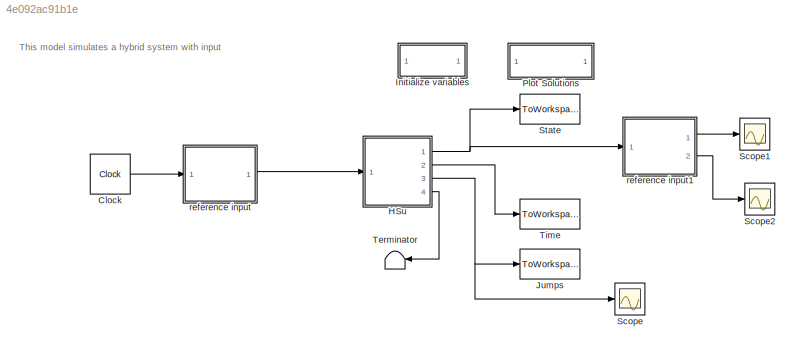
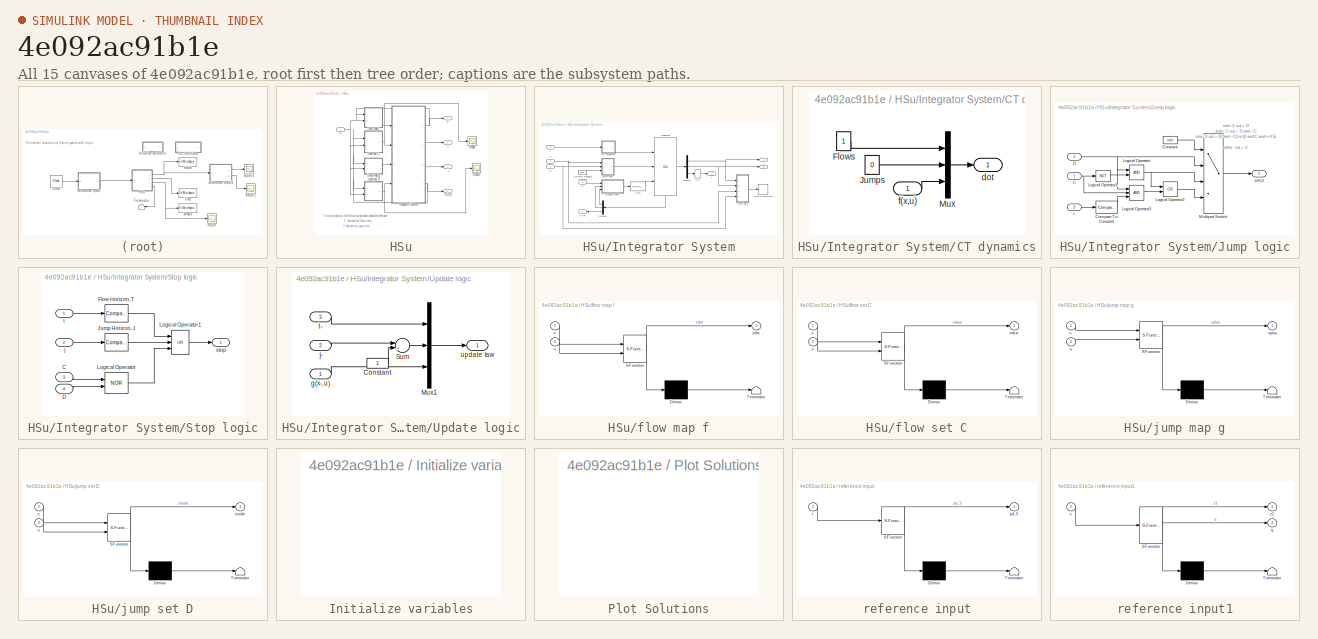
[diagram: thumbnail index - all 15 canvases of the model, root first then tree order]
MODEL slx_4e092ac91b1e
KIND model
CONFIG AbsTol = AbsTol
CONFIG FixedStep = auto
CONFIG MaxStep = MaxStep
CONFIG MinStep = auto
CONFIG RelTol = RelTol
CONFIG SampleTimeConstraint = Unconstrained
CONFIG Solver = VariableStepAuto
CONFIG SolverMode = Auto
CONFIG SolverName = VariableStepAuto
CONFIG StartTime = t_0
CONFIG StopTime = T
BLOCK [Clock] Clock
  DisplayTime = on
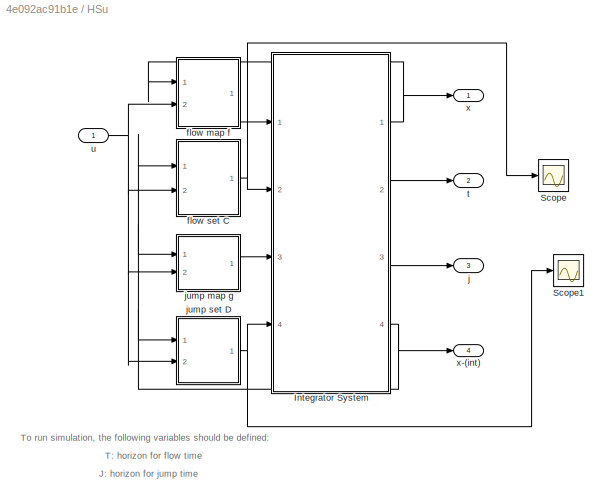
BLOCK [SubSystem] HSu
  CopyFcn = set_param(gcb,'LinkStatus','none'),                                      \nset_param(gcs, 'MaxStep', 'MaxStep', 'RelTol', 'RelTol','Stop time', 'T')
  LoadFcn = set_param(gcb,'LinkStatus','none')
  Ports = [1, 4]
  RequestExecContextInheritance = off
  Variant = off
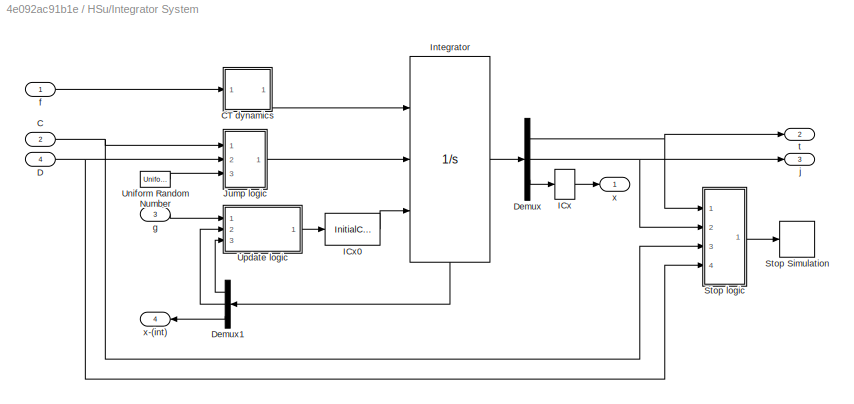
BLOCK [SubSystem] HSu/Integrator System
  Ports = [4, 4]
  Priority = 2
  RequestExecContextInheritance = off
  Variant = off
BLOCK [Inport] HSu/Integrator System/C
  IconDisplay = Port number
  Port = 2
BLOCK [SubSystem] HSu/Integrator System/CT dynamics
  Ports = [1, 1]
  RequestExecContextInheritance = off
  Variant = off
BLOCK [Constant] HSu/Integrator System/CT dynamics/Flows
BLOCK [Constant] HSu/Integrator System/CT dynamics/Jumps
  Value = 0
BLOCK [Mux] HSu/Integrator System/CT dynamics/Mux
  DisplayOption = bar
  Inputs = [1 1 -1]
  Ports = [3, 1]
BLOCK [Outport] HSu/Integrator System/CT dynamics/dot
  IconDisplay = Port number
BLOCK [Inport] HSu/Integrator System/CT dynamics/f(x,u)
  IconDisplay = Port number
BLOCK [Inport] HSu/Integrator System/D
  IconDisplay = Port number
  Port = 4
BLOCK [Demux] HSu/Integrator System/Demux
  DisplayOption = bar
  Outputs = [1 1 -1]
  Ports = [1, 3]
BLOCK [Demux] HSu/Integrator System/Demux1
  DisplayOption = bar
  Outputs = [1 1 -1]
  Ports = [1, 3]
BLOCK [InitialCondition] HSu/Integrator System/ICx
  Value = x_0
BLOCK [InitialCondition] HSu/Integrator System/ICx0
  Value = [0; 0; x_0(:)]
BLOCK [Integrator] HSu/Integrator System/Integrator
  ExternalReset = level hold
  InitialConditionSource = external
  Ports = [3, 1, 0, 0, 1]
  ShowStatePort = on
  ZeroCross = off
BLOCK [SubSystem] HSu/Integrator System/Jump logic
  Ports = [3, 1]
  RequestExecContextInheritance = off
  Variant = off
BLOCK [Inport] HSu/Integrator System/Jump logic/C
  IconDisplay = Port number
BLOCK [Reference] HSu/Integrator System/Jump logic/Compare To Constant  REF=simulink/Logic and Bit
Operations/Compare
To Constant
  Ports = [1, 1]
  SourceBlock = simulink/Logic and Bit\nOperations/Compare\nTo Constant
  SourceType = Compare To Constant
BLOCK [Constant] HSu/Integrator System/Jump logic/Constant
  Value = rule
BLOCK [Inport] HSu/Integrator System/Jump logic/D
  IconDisplay = Port number
  Port = 2
BLOCK [Logic] HSu/Integrator System/Jump logic/Logical Operator
  AllPortsSameDT = off
  OutDataTypeStr = boolean
  Ports = [2, 1]
BLOCK [Logic] HSu/Integrator System/Jump logic/Logical Operator1
  AllPortsSameDT = off
  Inputs = 1
  Operator = NOT
  OutDataTypeStr = boolean
  Ports = [1, 1]
BLOCK [Logic] HSu/Integrator System/Jump logic/Logical Operator2
  AllPortsSameDT = off
  Operator = OR
  OutDataTypeStr = boolean
  Ports = [2, 1]
BLOCK [Logic] HSu/Integrator System/Jump logic/Logical Operator3
  AllPortsSameDT = off
  Inputs = 3
  OutDataTypeStr = boolean
  Ports = [3, 1]
BLOCK [MultiPortSwitch] HSu/Integrator System/Jump logic/Multiport Switch
  InputSameDT = off
  Ports = [4, 1]
  SaturateOnIntegerOverflow = off
BLOCK [Outport] HSu/Integrator System/Jump logic/jump
  IconDisplay = Port number
BLOCK [Inport] HSu/Integrator System/Jump logic/r
  IconDisplay = Port number
  Port = 3
BLOCK [Stop] HSu/Integrator System/Stop Simulation
BLOCK [SubSystem] HSu/Integrator System/Stop logic
  Ports = [4, 1]
  RequestExecContextInheritance = off
  Variant = off
BLOCK [Inport] HSu/Integrator System/Stop logic/C
  IconDisplay = Port number
  Port = 3
BLOCK [Inport] HSu/Integrator System/Stop logic/D
  IconDisplay = Port number
  Port = 4
BLOCK [Reference] HSu/Integrator System/Stop logic/Flow Horizon, T  REF=simulink/Logic and Bit
Operations/Compare
To Constant
  Ports = [1, 1]
  SourceBlock = simulink/Logic and Bit\nOperations/Compare\nTo Constant
  SourceType = Compare To Constant
BLOCK [Reference] HSu/Integrator System/Stop logic/Jump Horizon, J  REF=simulink/Logic and Bit
Operations/Compare
To Constant
  Ports = [1, 1]
  SourceBlock = simulink/Logic and Bit\nOperations/Compare\nTo Constant
  SourceType = Compare To Constant
BLOCK [Logic] HSu/Integrator System/Stop logic/Logical Operator
  AllPortsSameDT = off
  Operator = NOR
  OutDataTypeStr = boolean
  Ports = [2, 1]
BLOCK [Logic] HSu/Integrator System/Stop logic/Logical Operator1
  AllPortsSameDT = off
  Inputs = 3
  Operator = OR
  OutDataTypeStr = boolean
  Ports = [3, 1]
BLOCK [Inport] HSu/Integrator System/Stop logic/j
  IconDisplay = Port number
  Port = 2
BLOCK [Outport] HSu/Integrator System/Stop logic/stop
  IconDisplay = Port number
BLOCK [Inport] HSu/Integrator System/Stop logic/t
  IconDisplay = Port number
BLOCK [UniformRandomNumber] HSu/Integrator System/Uniform Random Number
  Minimum = 0
  SampleTime = 0
  Seed = abs(floor(100*rand))
BLOCK [SubSystem] HSu/Integrator System/Update logic
  Ports = [3, 1]
  RequestExecContextInheritance = off
  Variant = off
BLOCK [Constant] HSu/Integrator System/Update logic/Constant
BLOCK [Mux] HSu/Integrator System/Update logic/Mux1
  DisplayOption = bar
  Inputs = [1 1 -1]
  Ports = [3, 1]
BLOCK [Sum] HSu/Integrator System/Update logic/Sum
  IconShape = round
  InputSameDT = off
  Inputs = |++
  OutDataTypeStr = Inherit: Inherit via internal rule
  Ports = [2, 1]
  SaturateOnIntegerOverflow = off
BLOCK [Inport] HSu/Integrator System/Update logic/g(x-,u)
  IconDisplay = Port number
BLOCK [Inport] HSu/Integrator System/Update logic/j-
  IconDisplay = Port number
  Port = 2
BLOCK [Inport] HSu/Integrator System/Update logic/t-
  IconDisplay = Port number
  Port = 3
BLOCK [Outport] HSu/Integrator System/Update logic/update law
  IconDisplay = Port number
BLOCK [Inport] HSu/Integrator System/f
  IconDisplay = Port number
BLOCK [Inport] HSu/Integrator System/g
  IconDisplay = Port number
  Port = 3
BLOCK [Outport] HSu/Integrator System/j
  IconDisplay = Port number
  Port = 3
BLOCK [Outport] HSu/Integrator System/t
  IconDisplay = Port number
  Port = 2
BLOCK [Outport] HSu/Integrator System/x
  IconDisplay = Port number
BLOCK [Outport] HSu/Integrator System/x-(int)
  IconDisplay = Port number
  Port = 4
BLOCK [Scope] HSu/Scope
  Ports = [1]
  ScopeSpecificationString = Simulink.scopes.TimeScopeBlockCfg('CurrentConfiguration', extmgr.ConfigurationSet(extmgr.Configuration('Core','General UI',true),extmgr.Configuration('Core','Source UI',true),extmgr.Configuration('Sources','WiredSimulink',true,'DataLoggingVariableName','ScopeData1'),extmgr.Configuration('Visuals','Time Domain',true,'SerializedDisplays',{struct('MinYLimReal','-0.01085','MaxYLimReal','0.01608','YLab...<+1446ch>
BLOCK [Scope] HSu/Scope1
  Ports = [1]
  ScopeSpecificationString = Simulink.scopes.TimeScopeBlockCfg('CurrentConfiguration', extmgr.ConfigurationSet(extmgr.Configuration('Core','General UI',true),extmgr.Configuration('Core','Source UI',true),extmgr.Configuration('Sources','WiredSimulink',true,'DataLoggingVariableName','ScopeData2'),extmgr.Configuration('Visuals','Time Domain',true,'SerializedDisplays',{struct('MinYLimReal','-0.00007','MaxYLimReal','0.00007','YLab...<+1388ch>
BLOCK [SubSystem] HSu/flow map f
  ErrorFcn = Stateflow.Translate.translate
  PermitHierarchicalResolution = ExplicitOnly
  Ports = [2, 1]
  RequestExecContextInheritance = off
  SFBlockType = MATLAB Function
  TreatAsAtomicUnit = on
  Variant = off
BLOCK [Demux] HSu/flow map f/ Demux 
  Outputs = 1
  Ports = [1, 1]
BLOCK [S-Function] HSu/flow map f/ SFunction 
  EnableBusSupport = on
  FunctionName = sf_sfun
  Parameters = para
  PortCounts = [2 2]
  Ports = [2, 2]
  SFunctionDeploymentMode = off
  Tag = Stateflow S-Function quadrotor_20190317_small 13
BLOCK [Terminator] HSu/flow map f/ Terminator 
BLOCK [Inport] HSu/flow map f/u
  IconDisplay = Port number
  Port = 2
BLOCK [Inport] HSu/flow map f/x
  IconDisplay = Port number
BLOCK [Outport] HSu/flow map f/xdot
  IconDisplay = Port number
BLOCK [SubSystem] HSu/flow set C
  ErrorFcn = Stateflow.Translate.translate
  PermitHierarchicalResolution = ExplicitOnly
  Ports = [2, 1]
  RequestExecContextInheritance = off
  SFBlockType = MATLAB Function
  TreatAsAtomicUnit = on
  Variant = off
BLOCK [Demux] HSu/flow set C/ Demux 
  Outputs = 1
  Ports = [1, 1]
BLOCK [S-Function] HSu/flow set C/ SFunction 
  EnableBusSupport = on
  FunctionName = sf_sfun
  Parameters = para
  PortCounts = [2 2]
  Ports = [2, 2]
  SFunctionDeploymentMode = off
  Tag = Stateflow S-Function quadrotor_20190317_small 14
BLOCK [Terminator] HSu/flow set C/ Terminator 
BLOCK [Inport] HSu/flow set C/u
  IconDisplay = Port number
  Port = 2
BLOCK [Outport] HSu/flow set C/value
  IconDisplay = Port number
BLOCK [Inport] HSu/flow set C/x
  IconDisplay = Port number
BLOCK [Outport] HSu/j
  IconDisplay = Port number
  Port = 3
BLOCK [SubSystem] HSu/jump map g
  ErrorFcn = Stateflow.Translate.translate
  PermitHierarchicalResolution = ExplicitOnly
  Ports = [2, 1]
  Priority = 2
  RequestExecContextInheritance = off
  SFBlockType = MATLAB Function
  TreatAsAtomicUnit = on
  Variant = off
BLOCK [Demux] HSu/jump map g/ Demux 
  Outputs = 1
  Ports = [1, 1]
BLOCK [S-Function] HSu/jump map g/ SFunction 
  EnableBusSupport = on
  FunctionName = sf_sfun
  Parameters = para
  PortCounts = [2 2]
  Ports = [2, 2]
  SFunctionDeploymentMode = off
  Tag = Stateflow S-Function quadrotor_20190317_small 15
BLOCK [Terminator] HSu/jump map g/ Terminator 
BLOCK [Inport] HSu/jump map g/u
  IconDisplay = Port number
  Port = 2
BLOCK [Inport] HSu/jump map g/x
  IconDisplay = Port number
BLOCK [Outport] HSu/jump map g/xplus
  IconDisplay = Port number
BLOCK [SubSystem] HSu/jump set D
  ErrorFcn = Stateflow.Translate.translate
  PermitHierarchicalResolution = ExplicitOnly
  Ports = [2, 1]
  RequestExecContextInheritance = off
  SFBlockType = MATLAB Function
  TreatAsAtomicUnit = on
  Variant = off
BLOCK [Demux] HSu/jump set D/ Demux 
  Outputs = 1
  Ports = [1, 1]
BLOCK [S-Function] HSu/jump set D/ SFunction 
  EnableBusSupport = on
  FunctionName = sf_sfun
  Parameters = para
  PortCounts = [2 2]
  Ports = [2, 2]
  SFunctionDeploymentMode = off
  Tag = Stateflow S-Function quadrotor_20190317_small 16
BLOCK [Terminator] HSu/jump set D/ Terminator 
BLOCK [Outport] HSu/jump set D/inside
  IconDisplay = Port number
BLOCK [Inport] HSu/jump set D/u
  IconDisplay = Port number
  Port = 2
BLOCK [Inport] HSu/jump set D/x
  IconDisplay = Port number
BLOCK [Outport] HSu/t
  IconDisplay = Port number
  Port = 2
BLOCK [Inport] HSu/u
  IconDisplay = Port number
BLOCK [Outport] HSu/x
  IconDisplay = Port number
BLOCK [Outport] HSu/x-(int)
  IconDisplay = Port number
  Port = 4
BLOCK [SubSystem] Initialize variables
  OpenFcn = try                                                            \n     clearvars -except inifile pathfile_in pathfile_pos posfile\n     cd(pathfile_in);                                          \n     eval(inifile);                                            \ncatch                                                          \n     [inifile,pathfile_in] = getInitializationfile;            \n     cd(pathfile...<+179ch>
  Ports = []
  Priority = -10
  RequestExecContextInheritance = off
  Variant = off
BLOCK [ToWorkspace] Jumps
  FixptAsFi = on
  MaxDataPoints = inf
  Ports = [1]
  SampleTime = -1
  Save2DSignal = 2-D array (concatenate along first dimension)
  VariableName = j
BLOCK [SubSystem] Plot Solutions
  OpenFcn = try                                                 \n     cd(pathfile_pos);                              \n     eval(posfile);                                 \ncatch                                               \n     [posfile,pathfile_pos] = getInitializationfile;\n     cd(pathfile_pos);                              \n     posfile = strrep(posfile,'.m','');             \n     eval(posfile);          ...<+27ch>
  Ports = []
  RequestExecContextInheritance = off
  Variant = off
BLOCK [Scope] Scope
  Ports = [1]
  ScopeSpecificationString = Simulink.scopes.TimeScopeBlockCfg('CurrentConfiguration', extmgr.ConfigurationSet(extmgr.Configuration('Core','General UI',true),extmgr.Configuration('Core','Source UI',true),extmgr.Configuration('Sources','WiredSimulink',true),extmgr.Configuration('Visuals','Time Domain',true,'SerializedDisplays',{struct('MinYLimReal','206.63779','MaxYLimReal','231.58373','YLabelReal','','MinYLimMag','206.63779',...<+1411ch>
BLOCK [Scope] Scope1
  Ports = [1]
  ScopeSpecificationString = Simulink.scopes.TimeScopeBlockCfg('CurrentConfiguration', extmgr.ConfigurationSet(extmgr.Configuration('Core','General UI',true),extmgr.Configuration('Core','Source UI',true),extmgr.Configuration('Sources','WiredSimulink',true,'DataLoggingVariableName','ScopeData1'),extmgr.Configuration('Visuals','Time Domain',true,'SerializedDisplays',{struct('MinYLimReal','-29.38111','MaxYLimReal','33.82048','YL...<+1513ch>
BLOCK [Scope] Scope2
  Ports = [1]
  ScopeSpecificationString = Simulink.scopes.TimeScopeBlockCfg('CurrentConfiguration', extmgr.ConfigurationSet(extmgr.Configuration('Core','General UI',true),extmgr.Configuration('Core','Source UI',true),extmgr.Configuration('Sources','WiredSimulink',true,'DataLoggingVariableName','ScopeData1'),extmgr.Configuration('Visuals','Time Domain',true,'SerializedDisplays',{struct('MinYLimReal','-1.25','MaxYLimReal','1.25','YLabelReal...<+1437ch>
BLOCK [ToWorkspace] State
  FixptAsFi = on
  MaxDataPoints = inf
  Ports = [1]
  SampleTime = -1
  Save2DSignal = 2-D array (concatenate along first dimension)
  VariableName = x
BLOCK [Terminator] Terminator
BLOCK [ToWorkspace] Time
  FixptAsFi = on
  MaxDataPoints = inf
  Ports = [1]
  SampleTime = -1
  Save2DSignal = 2-D array (concatenate along first dimension)
  VariableName = t
BLOCK [SubSystem] reference input
  ErrorFcn = Stateflow.Translate.translate
  PermitHierarchicalResolution = ExplicitOnly
  Ports = [1, 1]
  RequestExecContextInheritance = off
  SFBlockType = MATLAB Function
  TreatAsAtomicUnit = on
  Variant = off
BLOCK [Demux] reference input/ Demux 
  Outputs = 1
  Ports = [1, 1]
BLOCK [S-Function] reference input/ SFunction 
  EnableBusSupport = on
  FunctionName = sf_sfun
  Parameters = para
  PortCounts = [1 2]
  Ports = [1, 2]
  SFunctionDeploymentMode = off
  Tag = Stateflow S-Function quadrotor_20190317_small 2
BLOCK [Terminator] reference input/ Terminator 
BLOCK [Outport] reference input/pd_3
  IconDisplay = Port number
BLOCK [Inport] reference input/t
  IconDisplay = Port number
BLOCK [SubSystem] reference input1
  ErrorFcn = Stateflow.Translate.translate
  PermitHierarchicalResolution = ExplicitOnly
  Ports = [1, 2]
  RequestExecContextInheritance = off
  SFBlockType = MATLAB Function
  TreatAsAtomicUnit = on
  Variant = off
BLOCK [Demux] reference input1/ Demux 
  Outputs = 1
  Ports = [1, 1]
BLOCK [S-Function] reference input1/ SFunction 
  EnableBusSupport = on
  FunctionName = sf_sfun
  PortCounts = [1 3]
  Ports = [1, 3]
  SFunctionDeploymentMode = off
  Tag = Stateflow S-Function quadrotor_20190317_small 1
BLOCK [Terminator] reference input1/ Terminator 
BLOCK [Outport] reference input1/q
  IconDisplay = Port number
  Port = 2
BLOCK [Inport] reference input1/x
  IconDisplay = Port number
BLOCK [Outport] reference input1/z1
  IconDisplay = Port number
ANNOTATION (root): This model simulates a hybrid system with input
ANNOTATION HSu: J: horizon for jump time
ANNOTATION HSu: T: horizon for flow time
ANNOTATION HSu: To run simulation, the following variables should be defined:
ANNOTATION HSu/Integrator System/Jump logic: rule=1: out = D rlule=2: out = D and ~C rule=3: out = (D and ~C) or (D and C and r>0.5) other : out = 0
LINE Clock:1 -> reference input:1
NET HSu/Integrator System/C:1 -> HSu/Integrator System/Jump logic:1, HSu/Integrator System/Stop logic:3
LINE HSu/Integrator System/CT dynamics/Flows:1 -> HSu/Integrator System/CT dynamics/Mux:1
LINE HSu/Integrator System/CT dynamics/Jumps:1 -> HSu/Integrator System/CT dynamics/Mux:2
LINE HSu/Integrator System/CT dynamics/Mux:1 -> HSu/Integrator System/CT dynamics/dot:1
LINE HSu/Integrator System/CT dynamics/f(x,u):1 -> HSu/Integrator System/CT dynamics/Mux:3
LINE HSu/Integrator System/CT dynamics:1 -> HSu/Integrator System/Integrator:1
NET HSu/Integrator System/D:1 -> HSu/Integrator System/Jump logic:2, HSu/Integrator System/Stop logic:4
LINE HSu/Integrator System/Demux1:1 -> HSu/Integrator System/Update logic:3
LINE HSu/Integrator System/Demux1:2 -> HSu/Integrator System/Update logic:2
LINE HSu/Integrator System/Demux1:3 -> HSu/Integrator System/x-(int):1
NET HSu/Integrator System/Demux:1 -> HSu/Integrator System/Stop logic:1, HSu/Integrator System/t:1
NET HSu/Integrator System/Demux:2 -> HSu/Integrator System/Stop logic:2, HSu/Integrator System/j:1
LINE HSu/Integrator System/Demux:3 -> HSu/Integrator System/ICx:1
LINE HSu/Integrator System/ICx0:1 -> HSu/Integrator System/Integrator:3
LINE HSu/Integrator System/ICx:1 -> HSu/Integrator System/x:1
LINE HSu/Integrator System/Integrator:1 -> HSu/Integrator System/Demux:1
LINE HSu/Integrator System/Integrator:state -> HSu/Integrator System/Demux1:1
NET HSu/Integrator System/Jump logic/C:1 -> HSu/Integrator System/Jump logic/Logical Operator1:1, HSu/Integrator System/Jump logic/Logical Operator3:2
LINE HSu/Integrator System/Jump logic/Compare To Constant:1 -> HSu/Integrator System/Jump logic/Logical Operator3:3
LINE HSu/Integrator System/Jump logic/Constant:1 -> HSu/Integrator System/Jump logic/Multiport Switch:1
NET HSu/Integrator System/Jump logic/D:1 -> HSu/Integrator System/Jump logic/Logical Operator3:1, HSu/Integrator System/Jump logic/Logical Operator:1, HSu/Integrator System/Jump logic/Multiport Switch:2
LINE HSu/Integrator System/Jump logic/Logical Operator1:1 -> HSu/Integrator System/Jump logic/Logical Operator:2
LINE HSu/Integrator System/Jump logic/Logical Operator2:1 -> HSu/Integrator System/Jump logic/Multiport Switch:4
LINE HSu/Integrator System/Jump logic/Logical Operator3:1 -> HSu/Integrator System/Jump logic/Logical Operator2:2
NET HSu/Integrator System/Jump logic/Logical Operator:1 -> HSu/Integrator System/Jump logic/Logical Operator2:1, HSu/Integrator System/Jump logic/Multiport Switch:3
LINE HSu/Integrator System/Jump logic/Multiport Switch:1 -> HSu/Integrator System/Jump logic/jump:1
LINE HSu/Integrator System/Jump logic/r:1 -> HSu/Integrator System/Jump logic/Compare To Constant:1
LINE HSu/Integrator System/Jump logic:1 -> HSu/Integrator System/Integrator:2
LINE HSu/Integrator System/Stop logic/C:1 -> HSu/Integrator System/Stop logic/Logical Operator:1
LINE HSu/Integrator System/Stop logic/D:1 -> HSu/Integrator System/Stop logic/Logical Operator:2
LINE HSu/Integrator System/Stop logic/Flow Horizon, T:1 -> HSu/Integrator System/Stop logic/Logical Operator1:1
LINE HSu/Integrator System/Stop logic/Jump Horizon, J:1 -> HSu/Integrator System/Stop logic/Logical Operator1:2
LINE HSu/Integrator System/Stop logic/Logical Operator1:1 -> HSu/Integrator System/Stop logic/stop:1
LINE HSu/Integrator System/Stop logic/Logical Operator:1 -> HSu/Integrator System/Stop logic/Logical Operator1:3
LINE HSu/Integrator System/Stop logic/j:1 -> HSu/Integrator System/Stop logic/Jump Horizon, J:1
LINE HSu/Integrator System/Stop logic/t:1 -> HSu/Integrator System/Stop logic/Flow Horizon, T:1
LINE HSu/Integrator System/Stop logic:1 -> HSu/Integrator System/Stop Simulation:1
LINE HSu/Integrator System/Uniform Random Number:1 -> HSu/Integrator System/Jump logic:3
LINE HSu/Integrator System/Update logic/Constant:1 -> HSu/Integrator System/Update logic/Sum:2
LINE HSu/Integrator System/Update logic/Mux1:1 -> HSu/Integrator System/Update logic/update law:1
LINE HSu/Integrator System/Update logic/Sum:1 -> HSu/Integrator System/Update logic/Mux1:2
LINE HSu/Integrator System/Update logic/g(x-,u):1 -> HSu/Integrator System/Update logic/Mux1:3
LINE HSu/Integrator System/Update logic/j-:1 -> HSu/Integrator System/Update logic/Sum:1
LINE HSu/Integrator System/Update logic/t-:1 -> HSu/Integrator System/Update logic/Mux1:1
LINE HSu/Integrator System/Update logic:1 -> HSu/Integrator System/ICx0:1
LINE HSu/Integrator System/f:1 -> HSu/Integrator System/CT dynamics:1
LINE HSu/Integrator System/g:1 -> HSu/Integrator System/Update logic:1
NET HSu/Integrator System:1 -> HSu/flow map f:1, HSu/x:1
LINE HSu/Integrator System:2 -> HSu/t:1
LINE HSu/Integrator System:3 -> HSu/j:1
NET HSu/Integrator System:4 -> HSu/flow set C:1, HSu/jump map g:1, HSu/jump set D:1, HSu/x-(int):1
LINE HSu/flow map f:1 -> HSu/Integrator System:1
NET HSu/flow set C:1 -> HSu/Integrator System:2, HSu/Scope:1
LINE HSu/jump map g:1 -> HSu/Integrator System:3
NET HSu/jump set D:1 -> HSu/Integrator System:4, HSu/Scope1:1
NET HSu/u:1 -> HSu/flow map f:2, HSu/flow set C:2, HSu/jump map g:2, HSu/jump set D:2
NET HSu:1 -> State:1, reference input1:1
LINE HSu:2 -> Time:1
NET HSu:3 -> Jumps:1, Scope:1
LINE HSu:4 -> Terminator:1
LINE reference input1:1 -> Scope1:1
LINE reference input1:2 -> Scope2:1
LINE reference input:1 -> HSu:1
note: NET lines group one-source signal fan-out (src -> all destinations, sorted); 1:1 wires keep LINE
CHART reference input1 states=1 transitions=1
  STATE_LABEL 'eML_blk_kernel()'
  STATE_LABEL 'SCRIPT:\nfunction [z1,q]=fcn_z1(x)\n\nz1=x(10:12);\nq=x(23);\n\nend'
CHART reference input states=1 transitions=1
  STATE_LABEL 'eML_blk_kernel()'
  STATE_LABEL 'SCRIPT:\nfunction pd_3 = fcn_pd_3(t, para)\n\nr_index=para(1);\nm=para(2);\ngra=para(3);\nk1=para(4);\nk2=para(5);\ngamma=para(6);\nkw=para(7);\nM_beta=para(8);\nK_beta=para(9);\ne1=para(10:12);\ne2=para(13:15);\ne3=para(16:18);\nepsilon=para(19);\nsigma=para(20);\n\n\nif r_index==1\n        [~,~,~,pd_3] = r_circle(t);\nelseif r_index==2\n        [~,~,~,pd_3] = r_lemniscate(t);\nelse \n        [~,~,~,pd_3] = r_stationary...<+199ch>'
CHART HSu/flow map f states=1 transitions=1
  STATE_LABEL 'eML_blk_kernel()'
  STATE_LABEL "SCRIPT:\nfunction xdot = f(x,u,para)\n\nm=para(2);\ngra=para(3);\ne3=para(16:18);\n\npd_1=x(4:6);\npd_2=x(7:9);\nz2=x(13:15);\nr3=x(16:18);\ns1=x(19);\ns2=x(20:22);\n\npd_3=u;\n\npdd=pd_1;\npd_1d=pd_2;\npd_2d=pd_3;\n\nz1d=z2;\nz2d=-1./m.*r3*s1+gra.*e3-pd_2;\nr3d=-S(r3)*s2;\n\ns1d=0;\ns2d=zeros(3,1);\nqd=0;\n\nf_map=[pdd;pd_1d;pd_2d;z1d;z2d;r3d;s1d;s2d;qd];\ngrad_V=fcn_grad_V(x,para);\n\nLyad=grad_V'*f_map;\n\nxdot=[pdd;pd_1d;pd_2...<+62ch>"
CHART HSu/flow set C states=1 transitions=1
  STATE_LABEL 'eML_blk_kernel()'
  STATE_LABEL 'SCRIPT:\nfunction value  = C(x,u,para)\n\nm=para(2);\ngra=para(3);\ne3=para(16:18);\nsigma=para(20);\neta=para(21);\ndelta=para(22);\navg_T=para(27);%%%%%%%%%%%%%%%%%%%%\n\npd=x(1:3);\npd_1=x(4:6);\npd_2=x(7:9);\nz1=x(10:12);\nz2=x(13:15);\nr3=x(16:18);\ns1=x(19);\ns2=x(20:22);\nxi=x(1:22);\nq=x(23);\ntau=x(25);%%%%%%%%%timer\n\nr=[pd;pd_1;pd_2];\nz=[z1;z2;r3];\n\npd_3=u;\n\npdd=pd_1;\npd_1d=pd_2;\npd_2d=pd_3;\nz1d=z2;\nz2d=-1./...<+1278ch>'
CHART HSu/jump map g states=1 transitions=1
  STATE_LABEL 'eML_blk_kernel()'
  STATE_LABEL "SCRIPT:\nfunction xplus = g(x,u,para)\n\n% rng('shuffle');\n\nm=para(2);\ngra=para(3);\ne3=para(16:18);\nepsilon=para(19);\nsigma=para(20);\neta=para(21);\ndelta=para(22);\navg_T=para(27);\n\npd=x(1:3);\npd_1=x(4:6);\npd_2=x(7:9);\nz1=x(10:12);\nz2=x(13:15);\nr3=x(16:18);\ns1=x(19);\ns2=x(20:22);\nxi=x(1:22);\nq=x(23);\nLya=x(24);\ntau=x(25);%%%%%%%%%%%%%%%\nr=[pd;pd_1;pd_2];\nz=[z1;z2;r3];\nzeta=[r;z1;z2];\n\npd_3=u;\n\npdplus=...<+1889ch>"
CHART HSu/jump set D states=1 transitions=1
  STATE_LABEL 'eML_blk_kernel()'
  STATE_LABEL 'SCRIPT:\nfunction inside  = D(x,u,para)\n\nm=para(2);\ngra=para(3);\ne3=para(16:18);\nsigma=para(20);\neta=para(21);\ndelta=para(22);\navg_T=para(27);\n\npd=x(1:3);\npd_1=x(4:6);\npd_2=x(7:9);\nz1=x(10:12);\nz2=x(13:15);\nr3=x(16:18);\ns1=x(19);\ns2=x(20:22);\nxi=x(1:22);\nq=x(23);\ntau=x(25);%%%%%%%%%%%%%%%\n\nr=[pd;pd_1;pd_2];\nz=[z1;z2;r3];\n\npd_3=u;\n\npdd=pd_1;\npd_1d=pd_2;\npd_2d=pd_3;\nz1d=z2;\nz2d=-1./m.*r3*s1+gra.*e3-p...<+757ch>'
